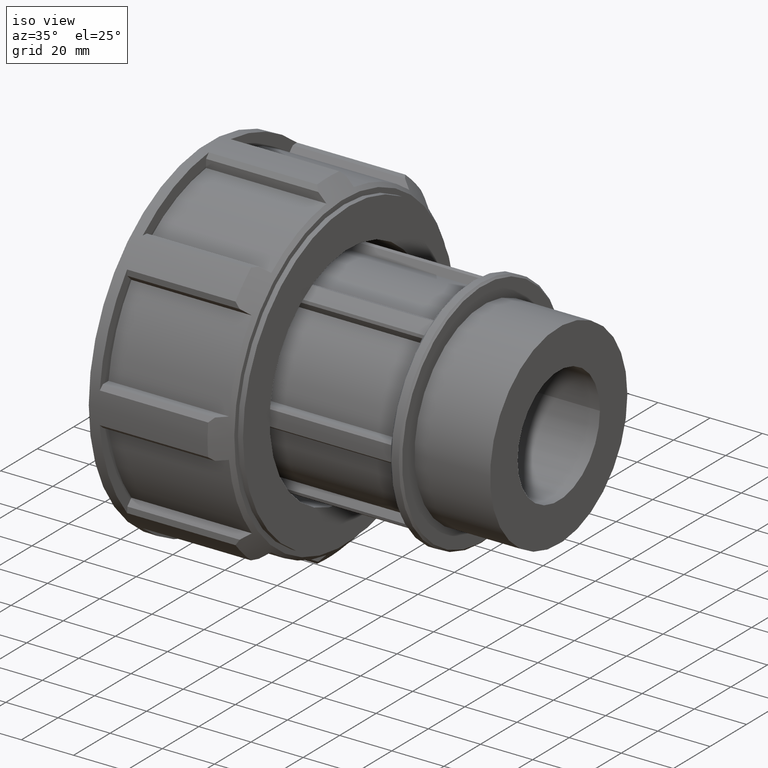
[diagram: clean part render]
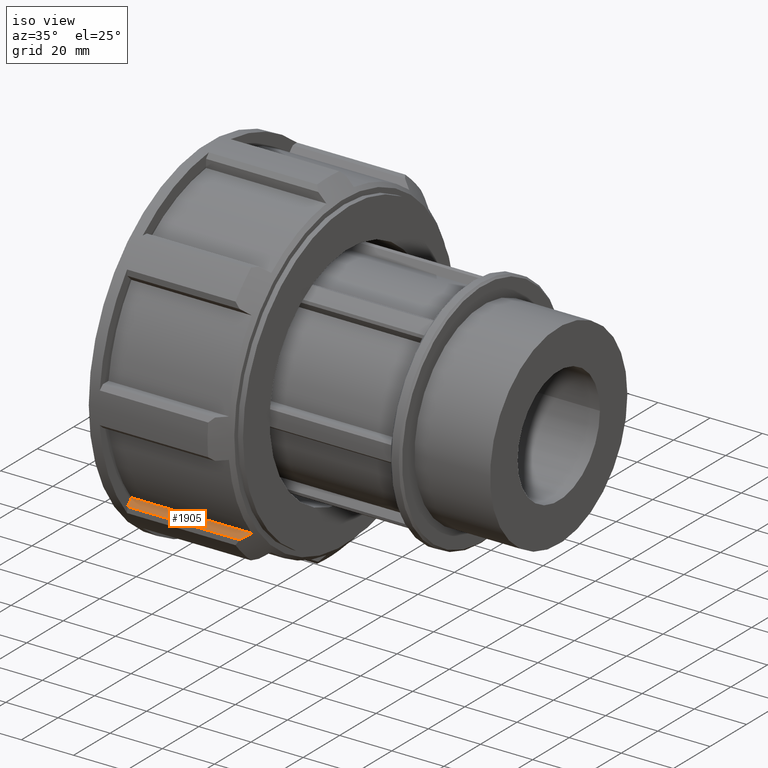
[diagram: same view with one face highlighted and labeled with its STEP entity id]
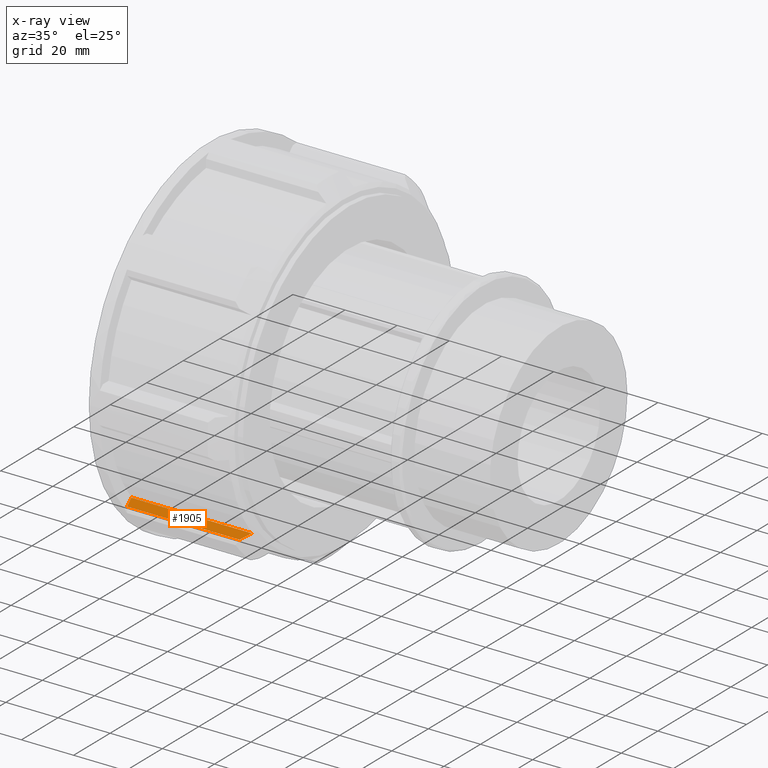
[diagram: x-ray of the same camera — body ghosted, the highlighted face saturated]
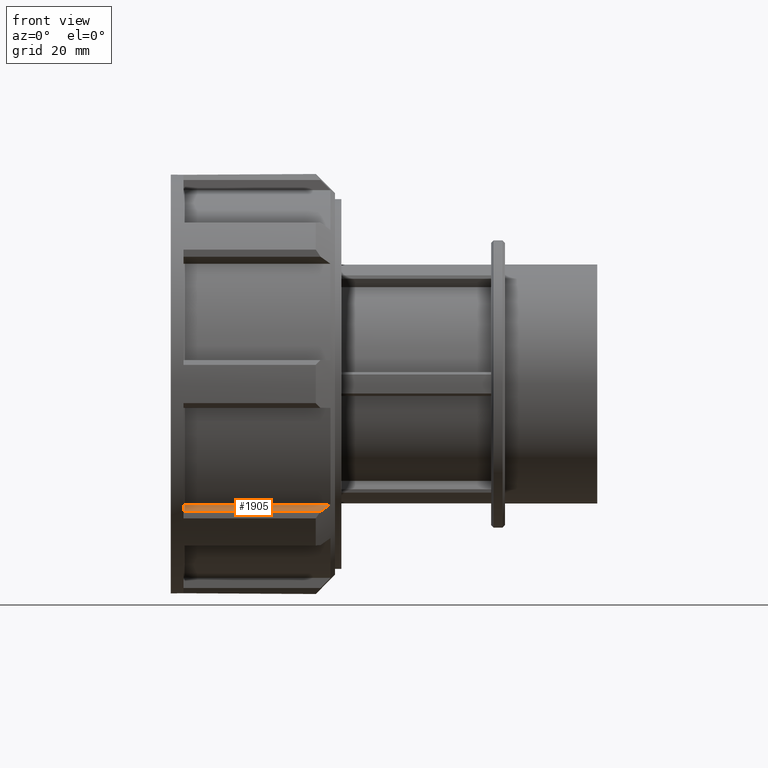
[diagram: same view with one face highlighted and labeled with its STEP entity id]
A machine part, iso view. The second image highlights one B-rep face of the part: STEP entity #1905.
The next image is the same camera in x-ray: the body ghosted, the highlighted face saturated — about 0% of this face is hidden behind the body in this view.
A second angle (front view) of the same face is appended — the face is thin or edge-on in the first view.
In plain terms, the highlighted planar face has unit normal (0, -0.7071, 0.7071).
Its self-contained STEP definition (entity closure, byte-faithful):
#30=(
BOUNDED_CURVE()
B_SPLINE_CURVE(2,(#2993,#2994,#2995),.UNSPECIFIED.,.F.,.F.)
B_SPLINE_CURVE_WITH_KNOTS((3,3),(0.262872954825197,0.833442969149527),
 .UNSPECIFIED.)
CURVE()
GEOMETRIC_REPRESENTATION_ITEM()
RATIONAL_B_SPLINE_CURVE((1.00324677143992,1.00662740270558,1.00938746695675))
REPRESENTATION_ITEM('')
);
#251=FACE_OUTER_BOUND('',#367,.T.);
#367=EDGE_LOOP('',(#1619,#1620,#1621,#1622));
#539=LINE('',#3146,#703);
#571=LINE('',#3210,#735);
#572=LINE('',#3211,#736);
#703=VECTOR('',#2469,43.0489443411917);
#735=VECTOR('',#2533,46.17528);
#736=VECTOR('',#2534,3.14889425088456);
#855=VERTEX_POINT('',#2990);
#856=VERTEX_POINT('',#2992);
#903=VERTEX_POINT('',#3145);
#919=VERTEX_POINT('',#3209);
#1082=EDGE_CURVE('',#855,#856,#30,.T.);
#1145=EDGE_CURVE('',#856,#903,#539,.T.);
#1177=EDGE_CURVE('',#919,#855,#571,.T.);
#1178=EDGE_CURVE('',#903,#919,#572,.T.);
#1619=ORIENTED_EDGE('',*,*,#1145,.F.);
#1620=ORIENTED_EDGE('',*,*,#1082,.F.);
#1621=ORIENTED_EDGE('',*,*,#1177,.F.);
#1622=ORIENTED_EDGE('',*,*,#1178,.F.);
#1814=PLANE('',#2071);
#1905=ADVANCED_FACE('',(#251),#1814,.T.);
#2071=AXIS2_PLACEMENT_3D('',#3208,#2531,#2532);
#2469=DIRECTION('',(-1.,0.,0.));
#2531=DIRECTION('center_axis',(0.,-0.707106781186548,0.707106781186547));
#2532=DIRECTION('ref_axis',(0.,0.707106781186548,0.707106781186548));
#2533=DIRECTION('',(1.,0.,0.));
#2534=DIRECTION('',(0.,0.707106781186547,0.707106781186548));
#2990=CARTESIAN_POINT('',(50.19528,-48.3916993842027,-37.7590761368569));
#2992=CARTESIAN_POINT('',(47.0689443411917,-50.6183038622425,-39.9856806148967));
#2993=CARTESIAN_POINT('Ctrl Pts',(50.19528,-48.3916993842027,-37.7590761368569));
#2994=CARTESIAN_POINT('Ctrl Pts',(48.6714950589427,-49.4773532174551,-38.8447299701092));
#2995=CARTESIAN_POINT('Ctrl Pts',(47.0689443411917,-50.6183038622425,-39.9856806148967));
#3145=CARTESIAN_POINT('',(4.02,-50.6183038622425,-39.9856806148967));
#3146=CARTESIAN_POINT('',(2.01000000000001,-50.6183038622425,-39.9856806148967));
#3208=CARTESIAN_POINT('Origin',(51.59,-51.6815661869771,-41.0489429396313));
#3209=CARTESIAN_POINT('',(4.02,-48.3916993842027,-37.7590761368569));
#3210=CARTESIAN_POINT('',(27.805,-48.3916993842027,-37.7590761368569));
#3211=CARTESIAN_POINT('',(4.02,-13.153938905325,-2.52131565797916));